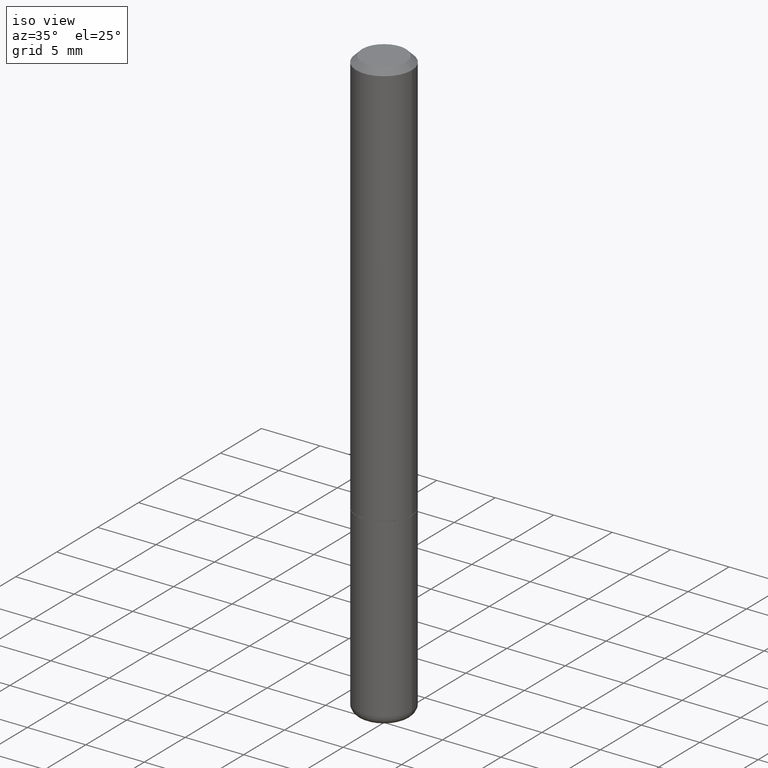
[diagram: clean part render]
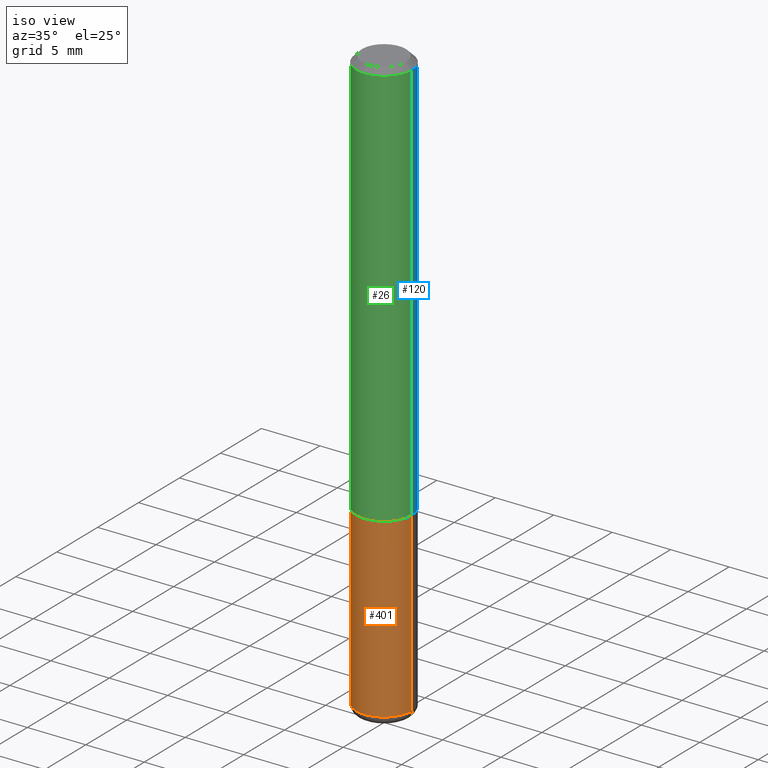
[diagram: same view with three faces highlighted in distinct colors, each labeled with its STEP entity id]
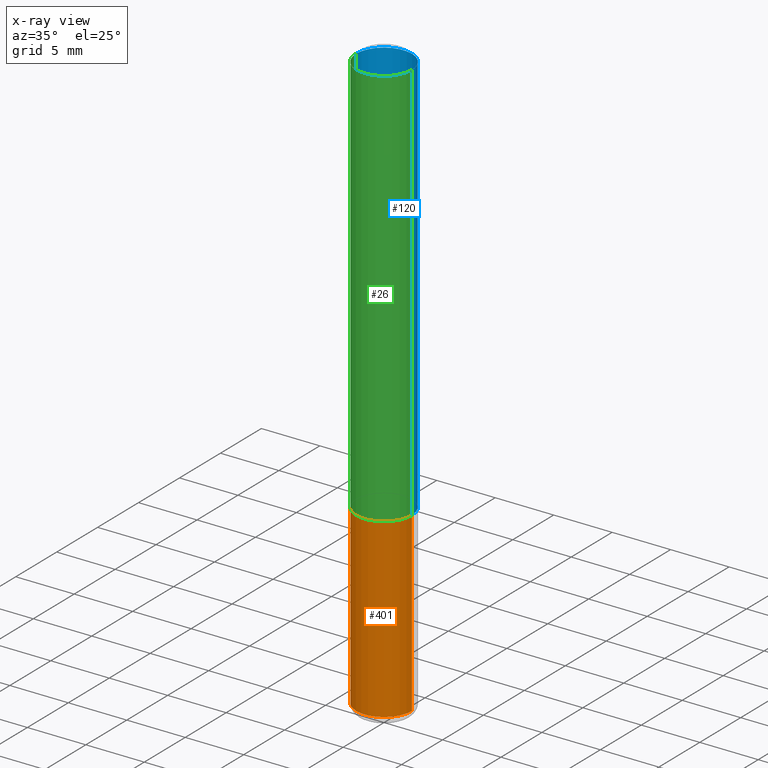
[diagram: x-ray of the same camera — body ghosted, the three highlighted faces saturated]
A machine part, iso view with three faces highlighted in distinct colors.
The next image is the same camera in x-ray (body ghosted, the three faces saturated) — at least one of them is partly hidden behind the body in this view.
Their STEP definitions:

[orange] entity #401 — the highlighted cylindrical surface (edge-blend (fillet) strip) has radius 2.3812 mm, axis along (-0, 0, 1).
#3 = VERTEX_POINT ( 'NONE', #378 ) ;
#28 = EDGE_LOOP ( 'NONE', ( #336, #234, #293, #403 ) ) ;
#29 = DIRECTION ( 'NONE',  ( 1.000000000000000000, -6.982962677686266711E-15, 4.876176775795935793E-29 ) ) ;
#50 = VECTOR ( 'NONE', #132, 39.37007874015748143 ) ;
#77 = CARTESIAN_POINT ( 'NONE',  ( 3.362519608504562260E-29, -4.800786840909324930E-15, -1.375000000000000000 ) ) ;
#107 = CYLINDRICAL_SURFACE ( 'NONE', #424, 0.09374999999999998612 ) ;
#113 = LINE ( 'NONE', #309, #350 ) ;
#117 = DIRECTION ( 'NONE',  ( 1.000000000000000000, -6.982962677686261189E-15, 0.000000000000000000 ) ) ;
#126 = AXIS2_PLACEMENT_3D ( 'NONE', #77, #278, #117 ) ;
#131 = CIRCLE ( 'NONE', #126, 0.09375000000000001388 ) ;
#132 = DIRECTION ( 'NONE',  ( -2.445468806185136877E-29, 3.491481338843145188E-15, 1.000000000000000000 ) ) ;
#144 = EDGE_CURVE ( 'NONE', #3, #357, #162, .T. ) ;
#155 = CIRCLE ( 'NONE', #286, 0.09374999999999998612 ) ;
#162 = LINE ( 'NONE', #331, #50 ) ;
#211 = CARTESIAN_POINT ( 'NONE',  ( 0.09375000000000001388, -5.455439591942412434E-15, -1.375000000000000000 ) ) ;
#217 = EDGE_CURVE ( 'NONE', #307, #357, #131, .T. ) ;
#220 = CARTESIAN_POINT ( 'NONE',  ( -0.09375000000000001388, -5.173440498747515894E-15, -1.375000000000000000 ) ) ;
#234 = ORIENTED_EDGE ( 'NONE', *, *, #353, .T. ) ;
#269 = CARTESIAN_POINT ( 'NONE',  ( 4.817674091084948534E-29, -6.878361786135894707E-15, -1.970041113957362811 ) ) ;
#272 = DIRECTION ( 'NONE',  ( -2.445468806185136597E-29, 3.491481338843145583E-15, 1.000000000000000000 ) ) ;
#278 = DIRECTION ( 'NONE',  ( -2.445468806185136597E-29, 3.491481338843145583E-15, 1.000000000000000000 ) ) ;
#286 = AXIS2_PLACEMENT_3D ( 'NONE', #269, #373, #340 ) ;
#293 = ORIENTED_EDGE ( 'NONE', *, *, #144, .T. ) ;
#307 = VERTEX_POINT ( 'NONE', #220 ) ;
#309 = CARTESIAN_POINT ( 'NONE',  ( -0.09374999999999998612, 6.661338147750938256E-16, -4.611501647113973295E-30 ) ) ;
#331 = CARTESIAN_POINT ( 'NONE',  ( 0.09374999999999998612, -6.546527510330874055E-16, 4.571415727308689105E-30 ) ) ;
#336 = ORIENTED_EDGE ( 'NONE', *, *, #432, .F. ) ;
#340 = DIRECTION ( 'NONE',  ( 1.000000000000000000, -6.982962677686263555E-15, 0.000000000000000000 ) ) ;
#346 = DIRECTION ( 'NONE',  ( -2.445468806185136877E-29, 3.491481338843145188E-15, 1.000000000000000000 ) ) ;
#350 = VECTOR ( 'NONE', #346, 39.37007874015748143 ) ;
#353 = EDGE_CURVE ( 'NONE', #412, #3, #155, .T. ) ;
#357 = VERTEX_POINT ( 'NONE', #211 ) ;
#373 = DIRECTION ( 'NONE',  ( -2.445468806185136597E-29, 3.491481338843145583E-15, 1.000000000000000000 ) ) ;
#378 = CARTESIAN_POINT ( 'NONE',  ( 0.09374999999999998612, -7.533014537168982211E-15, -1.970041113957362811 ) ) ;
#400 = CARTESIAN_POINT ( 'NONE',  ( 0.000000000000000000, 0.000000000000000000, 0.000000000000000000 ) ) ;
#401 = ADVANCED_FACE ( 'NONE', ( #438 ), #107, .T. ) ;
#403 = ORIENTED_EDGE ( 'NONE', *, *, #217, .F. ) ;
#412 = VERTEX_POINT ( 'NONE', #441 ) ;
#424 = AXIS2_PLACEMENT_3D ( 'NONE', #400, #272, #29 ) ;
#432 = EDGE_CURVE ( 'NONE', #412, #307, #113, .T. ) ;
#438 = FACE_OUTER_BOUND ( 'NONE', #28, .T. ) ;
#441 = CARTESIAN_POINT ( 'NONE',  ( -0.09374999999999998612, -5.173440498747515894E-15, -1.970041113957362811 ) ) ;

[blue] entity #120 — the highlighted cylindrical surface (edge-blend (fillet) strip) has radius 2.3812 mm, axis along (-0, 0, 1).
#1 = DIRECTION ( 'NONE',  ( -2.445468806185136877E-29, 3.491481338843145188E-15, 1.000000000000000000 ) ) ;
#25 = CARTESIAN_POINT ( 'NONE',  ( 3.360074139698377778E-29, -4.797295359570481134E-15, -1.373999999999999888 ) ) ;
#33 = ORIENTED_EDGE ( 'NONE', *, *, #158, .T. ) ;
#37 = LINE ( 'NONE', #178, #248 ) ;
#45 = CARTESIAN_POINT ( 'NONE',  ( -0.09374999999999991673, 6.661338147750933326E-16, -4.611501647113969791E-30 ) ) ;
#56 = VERTEX_POINT ( 'NONE', #356 ) ;
#79 = EDGE_CURVE ( 'NONE', #56, #434, #130, .T. ) ;
#88 = DIRECTION ( 'NONE',  ( -2.445468806185136877E-29, 3.491481338843145188E-15, 1.000000000000000000 ) ) ;
#96 = DIRECTION ( 'NONE',  ( -2.445468806185136597E-29, 3.491481338843145583E-15, 1.000000000000000000 ) ) ;
#99 = CARTESIAN_POINT ( 'NONE',  ( 0.000000000000000000, 0.000000000000000000, 0.000000000000000000 ) ) ;
#120 = ADVANCED_FACE ( 'NONE', ( #139 ), #266, .T. ) ;
#130 = LINE ( 'NONE', #45, #138 ) ;
#137 = EDGE_CURVE ( 'NONE', #227, #434, #140, .T. ) ;
#138 = VECTOR ( 'NONE', #88, 39.37007874015748143 ) ;
#139 = FACE_OUTER_BOUND ( 'NONE', #199, .T. ) ;
#140 = CIRCLE ( 'NONE', #393, 0.09374999999999981959 ) ;
#158 = EDGE_CURVE ( 'NONE', #431, #56, #295, .T. ) ;
#178 = CARTESIAN_POINT ( 'NONE',  ( 0.09374999999999991673, -6.546527510330869125E-16, 4.571415727308685602E-30 ) ) ;
#191 = AXIS2_PLACEMENT_3D ( 'NONE', #99, #433, #226 ) ;
#199 = EDGE_LOOP ( 'NONE', ( #33, #235, #381, #268 ) ) ;
#200 = DIRECTION ( 'NONE',  ( 1.000000000000000000, -6.982962677686261189E-15, 0.000000000000000000 ) ) ;
#203 = DIRECTION ( 'NONE',  ( 1.000000000000000000, -6.982962677686267499E-15, 0.000000000000000000 ) ) ;
#226 = DIRECTION ( 'NONE',  ( 1.000000000000000000, -6.982962677686266711E-15, 4.876176775795935793E-29 ) ) ;
#227 = VERTEX_POINT ( 'NONE', #260 ) ;
#235 = ORIENTED_EDGE ( 'NONE', *, *, #79, .T. ) ;
#242 = CARTESIAN_POINT ( 'NONE',  ( -0.09374999999999981959, 5.848231242562233185E-16, -0.02000000000000002123 ) ) ;
#248 = VECTOR ( 'NONE', #1, 39.37007874015748143 ) ;
#260 = CARTESIAN_POINT ( 'NONE',  ( 0.09374999999999981959, -7.130013140679428044E-16, -0.02000000000000002123 ) ) ;
#266 = CYLINDRICAL_SURFACE ( 'NONE', #191, 0.09374999999999991673 ) ;
#268 = ORIENTED_EDGE ( 'NONE', *, *, #362, .F. ) ;
#273 = CARTESIAN_POINT ( 'NONE',  ( 0.09375000000000001388, -5.451948110603568638E-15, -1.373999999999999888 ) ) ;
#295 = CIRCLE ( 'NONE', #303, 0.09375000000000001388 ) ;
#303 = AXIS2_PLACEMENT_3D ( 'NONE', #25, #96, #200 ) ;
#356 = CARTESIAN_POINT ( 'NONE',  ( -0.09375000000000001388, -1.767428678398575728E-15, -1.373999999999999888 ) ) ;
#362 = EDGE_CURVE ( 'NONE', #431, #227, #37, .T. ) ;
#370 = CARTESIAN_POINT ( 'NONE',  ( 4.890937612370278413E-31, -6.982962677686297772E-17, -0.02000000000000002123 ) ) ;
#381 = ORIENTED_EDGE ( 'NONE', *, *, #137, .F. ) ;
#393 = AXIS2_PLACEMENT_3D ( 'NONE', #370, #402, #203 ) ;
#402 = DIRECTION ( 'NONE',  ( -2.445468806185136597E-29, 3.491481338843145583E-15, 1.000000000000000000 ) ) ;
#431 = VERTEX_POINT ( 'NONE', #273 ) ;
#433 = DIRECTION ( 'NONE',  ( -2.445468806185136597E-29, 3.491481338843145583E-15, 1.000000000000000000 ) ) ;
#434 = VERTEX_POINT ( 'NONE', #242 ) ;

[green] entity #26 — the highlighted cylindrical surface (edge-blend (fillet) strip) has radius 2.3812 mm, axis along (-0, 0, 1).
#1 = DIRECTION ( 'NONE',  ( -2.445468806185136877E-29, 3.491481338843145188E-15, 1.000000000000000000 ) ) ;
#26 = ADVANCED_FACE ( 'NONE', ( #325 ), #337, .T. ) ;
#32 = AXIS2_PLACEMENT_3D ( 'NONE', #62, #135, #58 ) ;
#37 = LINE ( 'NONE', #178, #248 ) ;
#45 = CARTESIAN_POINT ( 'NONE',  ( -0.09374999999999991673, 6.661338147750933326E-16, -4.611501647113969791E-30 ) ) ;
#56 = VERTEX_POINT ( 'NONE', #356 ) ;
#58 = DIRECTION ( 'NONE',  ( 1.000000000000000000, -6.982962677686267499E-15, 0.000000000000000000 ) ) ;
#59 = ORIENTED_EDGE ( 'NONE', *, *, #426, .T. ) ;
#62 = CARTESIAN_POINT ( 'NONE',  ( 4.890937612370278413E-31, -6.982962677686297772E-17, -0.02000000000000002123 ) ) ;
#79 = EDGE_CURVE ( 'NONE', #56, #434, #130, .T. ) ;
#82 = CIRCLE ( 'NONE', #32, 0.09374999999999981959 ) ;
#88 = DIRECTION ( 'NONE',  ( -2.445468806185136877E-29, 3.491481338843145188E-15, 1.000000000000000000 ) ) ;
#129 = EDGE_CURVE ( 'NONE', #434, #227, #82, .T. ) ;
#130 = LINE ( 'NONE', #45, #138 ) ;
#135 = DIRECTION ( 'NONE',  ( -2.445468806185136597E-29, 3.491481338843145583E-15, 1.000000000000000000 ) ) ;
#138 = VECTOR ( 'NONE', #88, 39.37007874015748143 ) ;
#143 = DIRECTION ( 'NONE',  ( -2.445468806185136597E-29, 3.491481338843145583E-15, 1.000000000000000000 ) ) ;
#170 = ORIENTED_EDGE ( 'NONE', *, *, #362, .T. ) ;
#178 = CARTESIAN_POINT ( 'NONE',  ( 0.09374999999999991673, -6.546527510330869125E-16, 4.571415727308685602E-30 ) ) ;
#213 = CIRCLE ( 'NONE', #399, 0.09375000000000001388 ) ;
#227 = VERTEX_POINT ( 'NONE', #260 ) ;
#237 = AXIS2_PLACEMENT_3D ( 'NONE', #291, #143, #396 ) ;
#242 = CARTESIAN_POINT ( 'NONE',  ( -0.09374999999999981959, 5.848231242562233185E-16, -0.02000000000000002123 ) ) ;
#248 = VECTOR ( 'NONE', #1, 39.37007874015748143 ) ;
#260 = CARTESIAN_POINT ( 'NONE',  ( 0.09374999999999981959, -7.130013140679428044E-16, -0.02000000000000002123 ) ) ;
#273 = CARTESIAN_POINT ( 'NONE',  ( 0.09375000000000001388, -5.451948110603568638E-15, -1.373999999999999888 ) ) ;
#291 = CARTESIAN_POINT ( 'NONE',  ( 0.000000000000000000, 0.000000000000000000, 0.000000000000000000 ) ) ;
#301 = DIRECTION ( 'NONE',  ( -2.445468806185136597E-29, 3.491481338843145583E-15, 1.000000000000000000 ) ) ;
#302 = ORIENTED_EDGE ( 'NONE', *, *, #79, .F. ) ;
#308 = CARTESIAN_POINT ( 'NONE',  ( 3.360074139698377778E-29, -4.797295359570481134E-15, -1.373999999999999888 ) ) ;
#325 = FACE_OUTER_BOUND ( 'NONE', #404, .T. ) ;
#337 = CYLINDRICAL_SURFACE ( 'NONE', #237, 0.09374999999999991673 ) ;
#356 = CARTESIAN_POINT ( 'NONE',  ( -0.09375000000000001388, -1.767428678398575728E-15, -1.373999999999999888 ) ) ;
#362 = EDGE_CURVE ( 'NONE', #431, #227, #37, .T. ) ;
#396 = DIRECTION ( 'NONE',  ( 1.000000000000000000, -6.982962677686266711E-15, 4.876176775795935793E-29 ) ) ;
#399 = AXIS2_PLACEMENT_3D ( 'NONE', #308, #301, #413 ) ;
#404 = EDGE_LOOP ( 'NONE', ( #302, #59, #170, #415 ) ) ;
#413 = DIRECTION ( 'NONE',  ( 1.000000000000000000, -6.982962677686261189E-15, 0.000000000000000000 ) ) ;
#415 = ORIENTED_EDGE ( 'NONE', *, *, #129, .F. ) ;
#426 = EDGE_CURVE ( 'NONE', #56, #431, #213, .T. ) ;
#431 = VERTEX_POINT ( 'NONE', #273 ) ;
#434 = VERTEX_POINT ( 'NONE', #242 ) ;